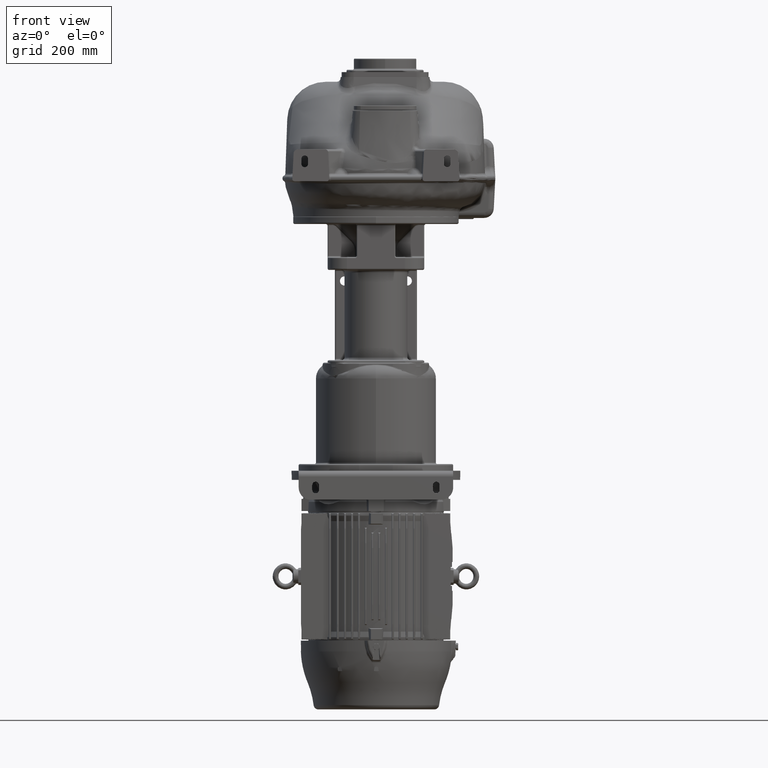
[diagram: clean part render]
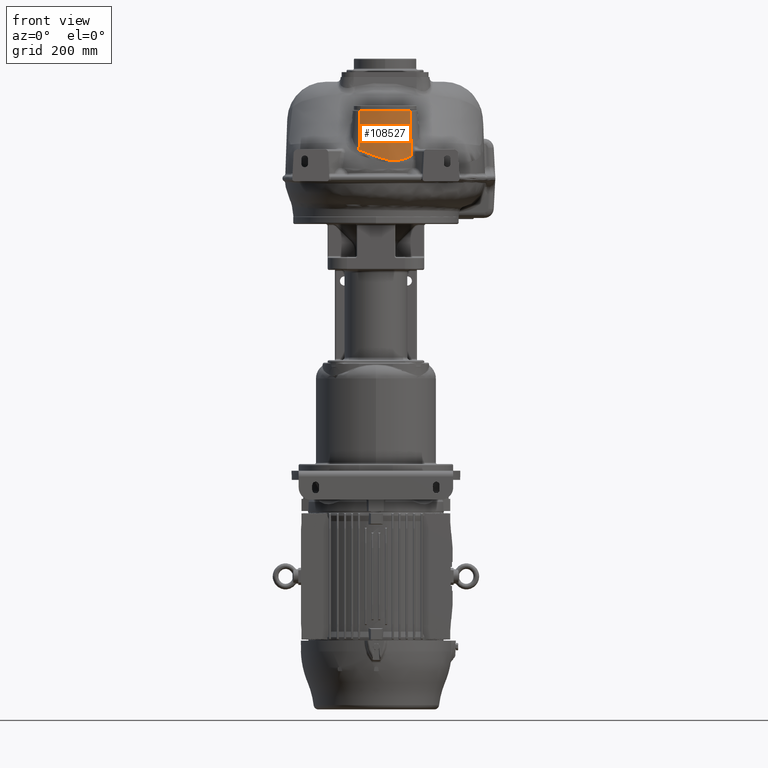
[diagram: same view with one face highlighted and labeled with its STEP entity id]
A machine part, front view. The second image highlights one B-rep face of the part: STEP entity #108527.
In plain terms, the highlighted conical surface has half-angle 4 deg.
Its self-contained STEP definition (entity closure, byte-faithful):
#35047=DIRECTION('',(2.575159038698E-2,-6.482973636891E-2,-9.975640134221E-1));
#35048=VECTOR('',#35047,8.508494999525E1);
#35049=CARTESIAN_POINT('',(8.987306064880E1,3.481382228491E1,1.4E2));
#35050=LINE('',#35049,#35048);
#35094=CARTESIAN_POINT('',(-1.594108065715E1,2.954396434858E1,
5.904242725228E1));
#35107=CARTESIAN_POINT('',(3.8E1,1.67E2,1.4E2));
#35108=DIRECTION('',(0.E0,0.E0,1.E0));
#35109=DIRECTION('',(-3.653032440056E-1,-9.308885754584E-1,0.E0));
#35110=AXIS2_PLACEMENT_3D('',#35107,#35108,#35109);
#35112=CARTESIAN_POINT('',(9.206413342918E1,2.929778740775E1,5.512231580091E1));
#35113=CARTESIAN_POINT('',(9.206598990630E1,2.922862367064E1,5.419194834694E1));
#35114=CARTESIAN_POINT('',(9.208505300909E1,2.909566685800E1,5.232246464280E1));
#35115=CARTESIAN_POINT('',(9.208436754527E1,2.888302613800E1,4.949478926731E1));
#35116=CARTESIAN_POINT('',(9.208949966884E1,2.874221710196E1,4.759282777569E1));
#35117=CARTESIAN_POINT('',(9.209137005492E1,2.867123747517E1,4.663773677885E1));
#35119=CARTESIAN_POINT('',(-1.594108065715E1,2.954396434858E1,
5.904242725228E1));
#35120=CARTESIAN_POINT('',(-1.054179946557E1,2.726223788950E1,
5.687355546567E1));
#35121=CARTESIAN_POINT('',(2.041224559813E-2,2.357901621676E1,
5.291569717009E1));
#35122=CARTESIAN_POINT('',(1.426082270877E1,2.022011405178E1,4.742299864465E1));
#35123=CARTESIAN_POINT('',(2.735254570669E1,1.840262718060E1,4.272631581322E1));
#35124=CARTESIAN_POINT('',(3.933668158900E1,1.779738827131E1,3.905000521576E1));
#35125=CARTESIAN_POINT('',(5.036989399818E1,1.818911844026E1,3.691851862956E1));
#35126=CARTESIAN_POINT('',(5.988646447379E1,1.928508029653E1,3.665336458871E1));
#35127=CARTESIAN_POINT('',(6.977127191090E1,2.117110231780E1,3.813832485493E1));
#35128=CARTESIAN_POINT('',(8.059415026115E1,2.418009284109E1,4.156248857622E1));
#35129=CARTESIAN_POINT('',(8.818503429233E1,2.700728772136E1,4.482059198604E1));
#35130=CARTESIAN_POINT('',(9.209137005492E1,2.867123747517E1,4.663773677885E1));
#35132=DIRECTION('',(-2.548226614912E-2,-6.493550447267E-2,-9.975640502598E-1));
#35133=VECTOR('',#35132,8.115526288927E1);
#35134=CARTESIAN_POINT('',(-1.387306064880E1,3.481382228491E1,1.4E2));
#35135=LINE('',#35134,#35133);
#35488=CARTESIAN_POINT('',(9.209137005492E1,2.867123747517E1,4.663773677885E1));
#40556=VERTEX_POINT('',#35094);
#40606=VERTEX_POINT('',#35488);
#40609=VERTEX_POINT('',#35112);
#40676=CARTESIAN_POINT('',(-1.387306064880E1,3.481382228491E1,1.4E2));
#40678=VERTEX_POINT('',#40676);
#40679=CARTESIAN_POINT('',(8.987306064880E1,3.481382228491E1,1.4E2));
#40680=VERTEX_POINT('',#40679);
#108513=CARTESIAN_POINT('',(3.8E1,1.67E2,8.840424600965E1));
#108514=DIRECTION('',(0.E0,0.E0,-1.E0));
#108515=DIRECTION('',(-1.E0,0.E0,0.E0));
#108516=AXIS2_PLACEMENT_3D('',#108513,#108514,#108515);
#108517=CONICAL_SURFACE('',#108516,1.456079265864E2,4.E0);
#108518=ORIENTED_EDGE('',*,*,#108479,.T.);
#108519=ORIENTED_EDGE('',*,*,#108460,.T.);
#108521=ORIENTED_EDGE('',*,*,#108520,.T.);
#108523=ORIENTED_EDGE('',*,*,#108522,.F.);
#108524=ORIENTED_EDGE('',*,*,#108502,.F.);
#108525=EDGE_LOOP('',(#108518,#108519,#108521,#108523,#108524));
#108526=FACE_OUTER_BOUND('',#108525,.F.);
#108527=ADVANCED_FACE('',(#108526),#108517,.T.);
#35111=CIRCLE('',#35110,1.42E2);
#35118=B_SPLINE_CURVE_WITH_KNOTS('',3,(#35112,#35113,#35114,#35115,#35116,
#35117),.UNSPECIFIED.,.F.,.F.,(4,1,1,4),(0.E0,3.333333333333E-1,
6.666666666667E-1,1.E0),.UNSPECIFIED.);
#35131=B_SPLINE_CURVE_WITH_KNOTS('',3,(#35119,#35120,#35121,#35122,#35123,
#35124,#35125,#35126,#35127,#35128,#35129,#35130),.UNSPECIFIED.,.F.,.F.,(4,1,1,
1,1,1,1,1,1,4),(0.E0,1.111111111111E-1,2.222222222222E-1,3.333333333333E-1,
4.444444444444E-1,5.555555555556E-1,6.666666666667E-1,7.777777777778E-1,
8.888888888889E-1,1.E0),.UNSPECIFIED.);
#108460=EDGE_CURVE('',#40680,#40609,#35050,.T.);
#108479=EDGE_CURVE('',#40678,#40680,#35111,.T.);
#108502=EDGE_CURVE('',#40678,#40556,#35135,.T.);
#108520=EDGE_CURVE('',#40609,#40606,#35118,.T.);
#108522=EDGE_CURVE('',#40556,#40606,#35131,.T.);